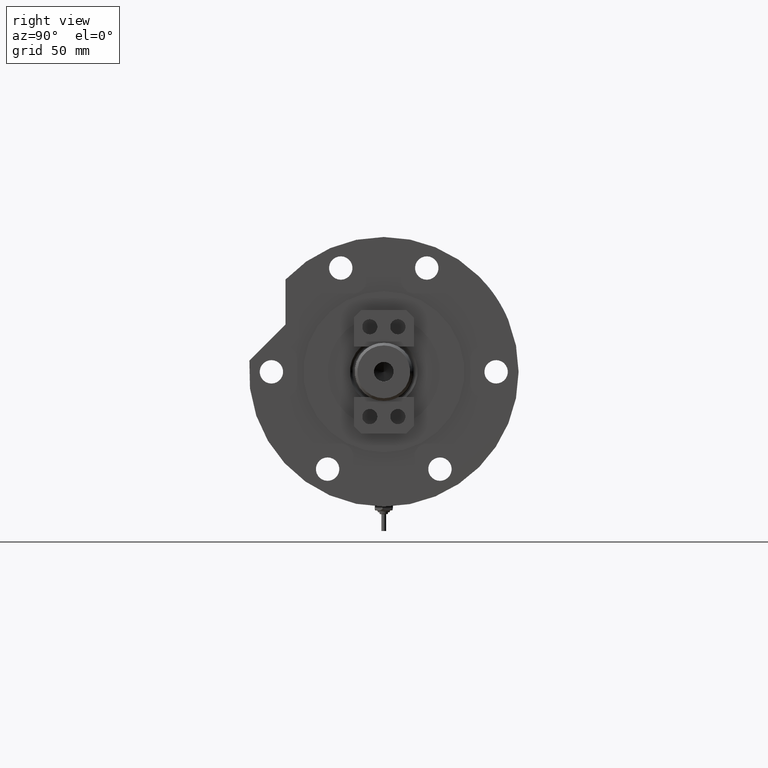
[diagram: clean part render]
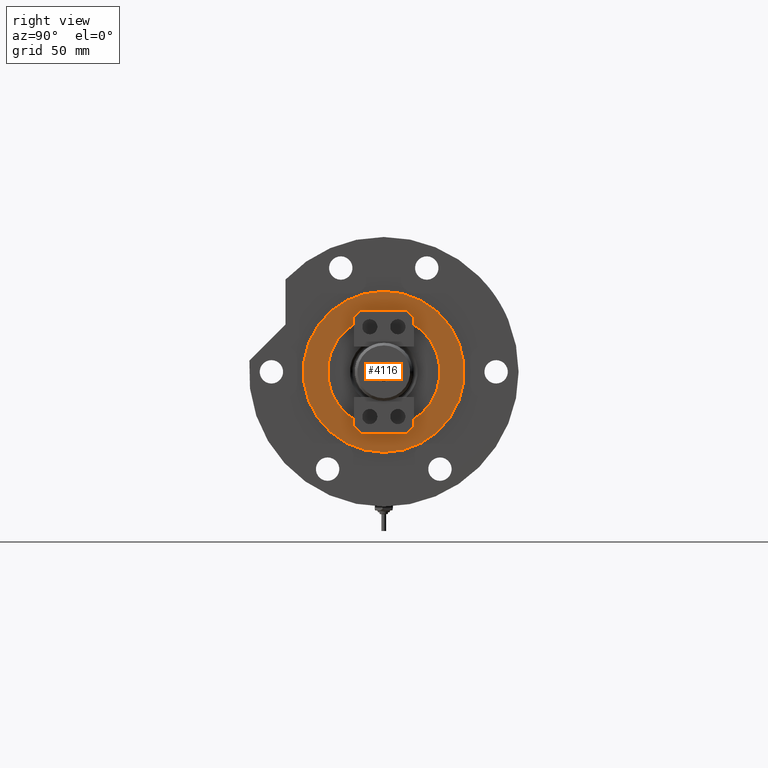
[diagram: same view with one face highlighted and labeled with its STEP entity id]
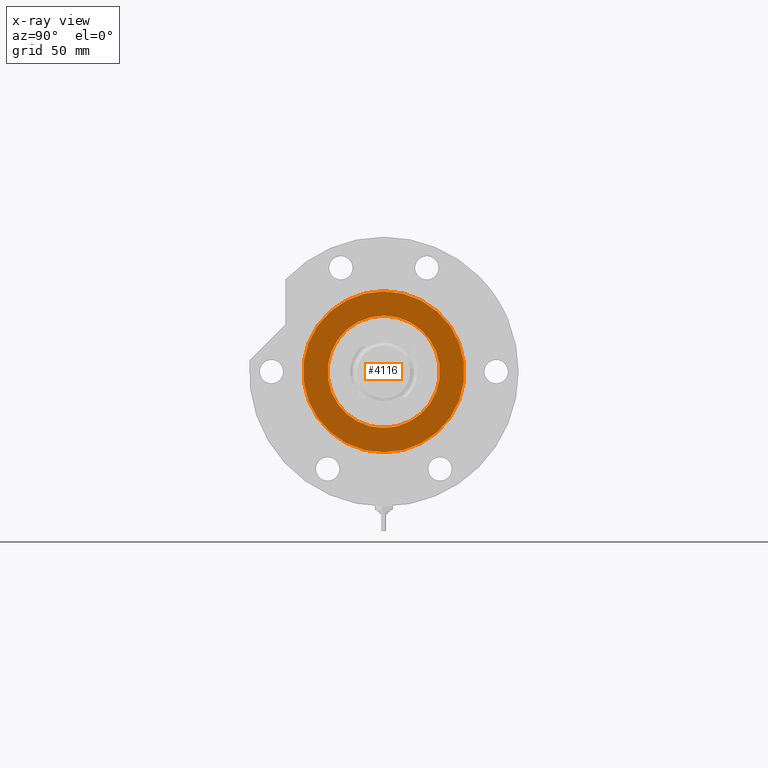
[diagram: x-ray of the same camera — body ghosted, the highlighted face saturated]
A machine part, right view. The second image highlights one B-rep face of the part: STEP entity #4116.
The next image is the same camera in x-ray: the body ghosted, the highlighted face saturated — about 0% of this face is hidden behind the body in this view.
In plain terms, the highlighted planar face has unit normal (1, 0, -0).
Its self-contained STEP definition (entity closure, byte-faithful):
#733 = VERTEX_POINT ( 'NONE', #7637 ) ;
#824 = CARTESIAN_POINT ( 'NONE',  ( 0.000000000000000000, 0.000000000000000000, 26.00000000000000355 ) ) ;
#976 = ORIENTED_EDGE ( 'NONE', *, *, #6225, .T. ) ;
#1314 = CIRCLE ( 'NONE', #6433, 43.00000000000000000 ) ;
#1364 = VERTEX_POINT ( 'NONE', #5434 ) ;
#1383 = ORIENTED_EDGE ( 'NONE', *, *, #6393, .T. ) ;
#1428 = DIRECTION ( 'NONE',  ( 0.000000000000000000, 0.000000000000000000, 1.000000000000000000 ) ) ;
#1681 = ORIENTED_EDGE ( 'NONE', *, *, #2984, .F. ) ;
#1803 = VERTEX_POINT ( 'NONE', #4331 ) ;
#1886 = CARTESIAN_POINT ( 'NONE',  ( 0.000000000000000000, 0.000000000000000000, 26.00000000000000355 ) ) ;
#2043 = DIRECTION ( 'NONE',  ( 1.000000000000000000, 0.000000000000000000, -0.000000000000000000 ) ) ;
#2150 = EDGE_CURVE ( 'NONE', #7329, #1364, #3135, .T. ) ;
#2439 = DIRECTION ( 'NONE',  ( 1.000000000000000000, 0.000000000000000000, 0.000000000000000000 ) ) ;
#2750 = AXIS2_PLACEMENT_3D ( 'NONE', #4398, #2967, #3724 ) ;
#2888 = DIRECTION ( 'NONE',  ( 1.000000000000000000, 0.000000000000000000, 0.000000000000000000 ) ) ;
#2967 = DIRECTION ( 'NONE',  ( 0.000000000000000000, 0.000000000000000000, 1.000000000000000000 ) ) ;
#2984 = EDGE_CURVE ( 'NONE', #1364, #7329, #5446, .T. ) ;
#3135 = CIRCLE ( 'NONE', #6240, 30.00000000000000000 ) ;
#3169 = AXIS2_PLACEMENT_3D ( 'NONE', #824, #5751, #2043 ) ;
#3471 = CIRCLE ( 'NONE', #5756, 43.00000000000000000 ) ;
#3724 = DIRECTION ( 'NONE',  ( 1.000000000000000000, 0.000000000000000000, 0.000000000000000000 ) ) ;
#3752 = DIRECTION ( 'NONE',  ( 0.000000000000000000, 0.000000000000000000, 1.000000000000000000 ) ) ;
#4116 = ADVANCED_FACE ( 'NONE', ( #4580, #5163 ), #7809, .T. ) ;
#4331 = CARTESIAN_POINT ( 'NONE',  ( -43.00000000000000000, 0.000000000000000000, 26.00000000000000355 ) ) ;
#4398 = CARTESIAN_POINT ( 'NONE',  ( 0.000000000000000000, 0.000000000000000000, 26.00000000000000355 ) ) ;
#4580 = FACE_BOUND ( 'NONE', #7032, .T. ) ;
#4665 = CARTESIAN_POINT ( 'NONE',  ( 0.000000000000000000, 0.000000000000000000, 26.00000000000000355 ) ) ;
#4678 = DIRECTION ( 'NONE',  ( 1.000000000000000000, 0.000000000000000000, 0.000000000000000000 ) ) ;
#5101 = EDGE_LOOP ( 'NONE', ( #1383, #976 ) ) ;
#5163 = FACE_OUTER_BOUND ( 'NONE', #5101, .T. ) ;
#5189 = ORIENTED_EDGE ( 'NONE', *, *, #2150, .F. ) ;
#5434 = CARTESIAN_POINT ( 'NONE',  ( 30.00000000000000000, 0.000000000000000000, 26.00000000000000355 ) ) ;
#5446 = CIRCLE ( 'NONE', #2750, 30.00000000000000000 ) ;
#5751 = DIRECTION ( 'NONE',  ( 0.000000000000000000, 0.000000000000000000, 1.000000000000000000 ) ) ;
#5756 = AXIS2_PLACEMENT_3D ( 'NONE', #1886, #3752, #2439 ) ;
#6225 = EDGE_CURVE ( 'NONE', #733, #1803, #3471, .T. ) ;
#6240 = AXIS2_PLACEMENT_3D ( 'NONE', #4665, #7897, #2888 ) ;
#6393 = EDGE_CURVE ( 'NONE', #1803, #733, #1314, .T. ) ;
#6433 = AXIS2_PLACEMENT_3D ( 'NONE', #7191, #1428, #4678 ) ;
#7032 = EDGE_LOOP ( 'NONE', ( #1681, #5189 ) ) ;
#7191 = CARTESIAN_POINT ( 'NONE',  ( 0.000000000000000000, 0.000000000000000000, 26.00000000000000355 ) ) ;
#7329 = VERTEX_POINT ( 'NONE', #8047 ) ;
#7637 = CARTESIAN_POINT ( 'NONE',  ( 43.00000000000000000, 5.265981236333618470E-15, 26.00000000000000355 ) ) ;
#7809 = PLANE ( 'NONE',  #3169 ) ;
#7897 = DIRECTION ( 'NONE',  ( 0.000000000000000000, 0.000000000000000000, 1.000000000000000000 ) ) ;
#8047 = CARTESIAN_POINT ( 'NONE',  ( -30.00000000000000000, 3.673940397442059178E-15, 26.00000000000000355 ) ) ;